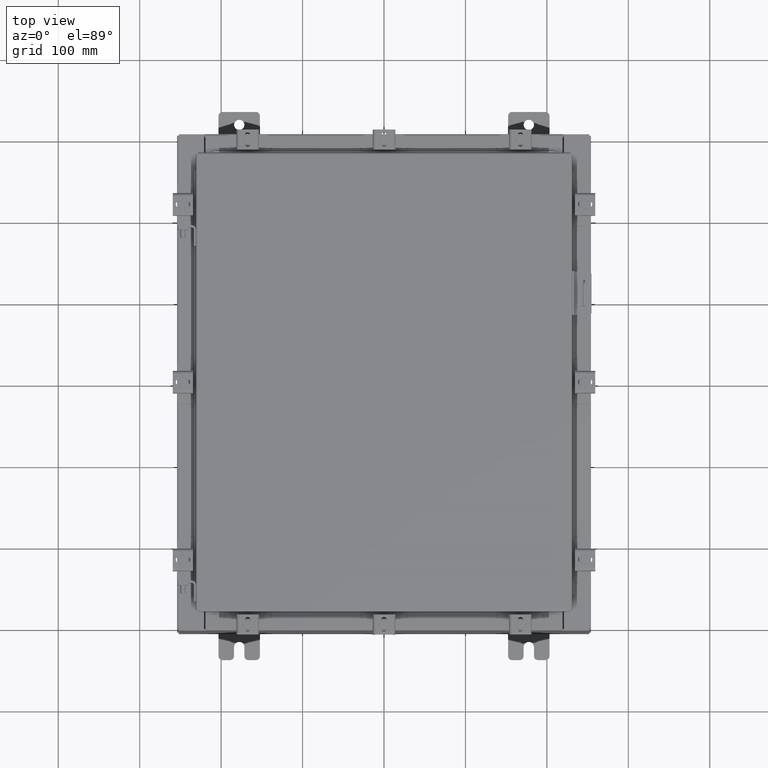
[diagram: clean part render]
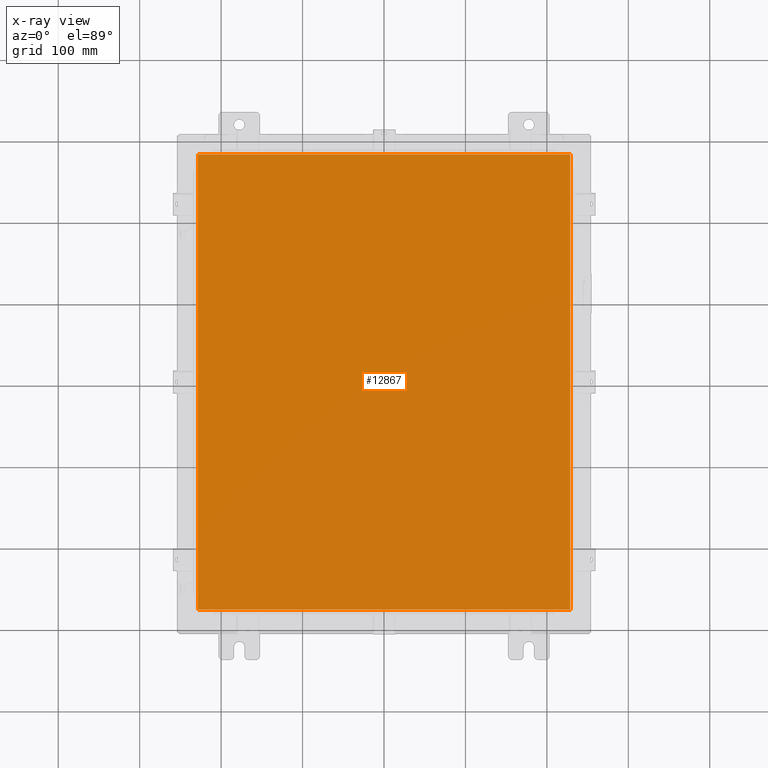
[diagram: x-ray — body ghosted, one internal face saturated and labeled with its STEP entity id]
A machine part, top view, then the same camera in x-ray: the body is ghosted and one INTERNAL B-rep face — a face not visible from any outside direction — is saturated and labeled: STEP entity #12867.
In plain terms, the highlighted planar face has unit normal (0, 0, -1).
Its self-contained STEP definition (entity closure, byte-faithful):
#167 = VECTOR ( 'NONE', #13448, 39.37007874015748100 ) ;
#1213 = ORIENTED_EDGE ( 'NONE', *, *, #21175, .F. ) ;
#1300 = DIRECTION ( 'NONE',  ( 0.0000000000000000000, -1.000000000000000000, 0.0000000000000000000 ) ) ;
#1467 = EDGE_CURVE ( 'NONE', #5981, #7214, #18571, .T. ) ;
#2599 = CARTESIAN_POINT ( 'NONE',  ( -9.006300000000001300, -11.00629999999999600, -0.07470000000000015500 ) ) ;
#2877 = EDGE_LOOP ( 'NONE', ( #1213, #9013, #16165, #4696 ) ) ;
#4479 = VERTEX_POINT ( 'NONE', #9115 ) ;
#4696 = ORIENTED_EDGE ( 'NONE', *, *, #13531, .F. ) ;
#5012 = LINE ( 'NONE', #22178, #9123 ) ;
#5981 = VERTEX_POINT ( 'NONE', #7622 ) ;
#7214 = VERTEX_POINT ( 'NONE', #12374 ) ;
#7622 = CARTESIAN_POINT ( 'NONE',  ( -9.006300000000001300, -11.00629999999999600, -0.07470000000000015500 ) ) ;
#8063 = CARTESIAN_POINT ( 'NONE',  ( -9.006300000000001300, 11.00630000000000100, -0.07470000000000015500 ) ) ;
#8596 = FACE_OUTER_BOUND ( 'NONE', #2877, .T. ) ;
#9013 = ORIENTED_EDGE ( 'NONE', *, *, #1467, .F. ) ;
#9115 = CARTESIAN_POINT ( 'NONE',  ( 9.006299999999996000, 11.00630000000000100, -0.07470000000000015500 ) ) ;
#9123 = VECTOR ( 'NONE', #1300, 39.37007874015748100 ) ;
#9481 = VERTEX_POINT ( 'NONE', #8063 ) ;
#9498 = LINE ( 'NONE', #11713, #167 ) ;
#9576 = DIRECTION ( 'NONE',  ( 0.0000000000000000000, 0.0000000000000000000, -1.000000000000000000 ) ) ;
#9725 = DIRECTION ( 'NONE',  ( 1.000000000000000000, -0.0000000000000000000, -0.0000000000000000000 ) ) ;
#10609 = EDGE_CURVE ( 'NONE', #9481, #5981, #5012, .T. ) ;
#11713 = CARTESIAN_POINT ( 'NONE',  ( 9.006299999999997800, -11.00629999999999600, -0.07470000000000015500 ) ) ;
#11738 = CARTESIAN_POINT ( 'NONE',  ( 9.006299999999997800, 11.00630000000000100, -0.07470000000000234800 ) ) ;
#12105 = VECTOR ( 'NONE', #13571, 39.37007874015748100 ) ;
#12374 = CARTESIAN_POINT ( 'NONE',  ( 9.006299999999997800, -11.00629999999999600, -0.07470000000000015500 ) ) ;
#12867 = ADVANCED_FACE ( 'NONE', ( #8596 ), #19968, .T. ) ;
#13448 = DIRECTION ( 'NONE',  ( 0.0000000000000000000, 1.000000000000000000, 0.0000000000000000000 ) ) ;
#13531 = EDGE_CURVE ( 'NONE', #4479, #9481, #16746, .T. ) ;
#13571 = DIRECTION ( 'NONE',  ( -1.000000000000000000, -0.0000000000000000000, -0.0000000000000000000 ) ) ;
#15738 = AXIS2_PLACEMENT_3D ( 'NONE', #16522, #9576, #21727 ) ;
#16165 = ORIENTED_EDGE ( 'NONE', *, *, #10609, .F. ) ;
#16522 = CARTESIAN_POINT ( 'NONE',  ( 0.0000000000000000000, 0.0000000000000000000, -0.07470000000000015500 ) ) ;
#16746 = LINE ( 'NONE', #11738, #12105 ) ;
#18571 = LINE ( 'NONE', #2599, #22096 ) ;
#19968 = PLANE ( 'NONE',  #15738 ) ;
#21175 = EDGE_CURVE ( 'NONE', #7214, #4479, #9498, .T. ) ;
#21727 = DIRECTION ( 'NONE',  ( -1.000000000000000000, 0.0000000000000000000, -0.0000000000000000000 ) ) ;
#22096 = VECTOR ( 'NONE', #9725, 39.37007874015748100 ) ;
#22178 = CARTESIAN_POINT ( 'NONE',  ( -9.006300000000001300, 11.00630000000000100, -0.07470000000000015500 ) ) ;